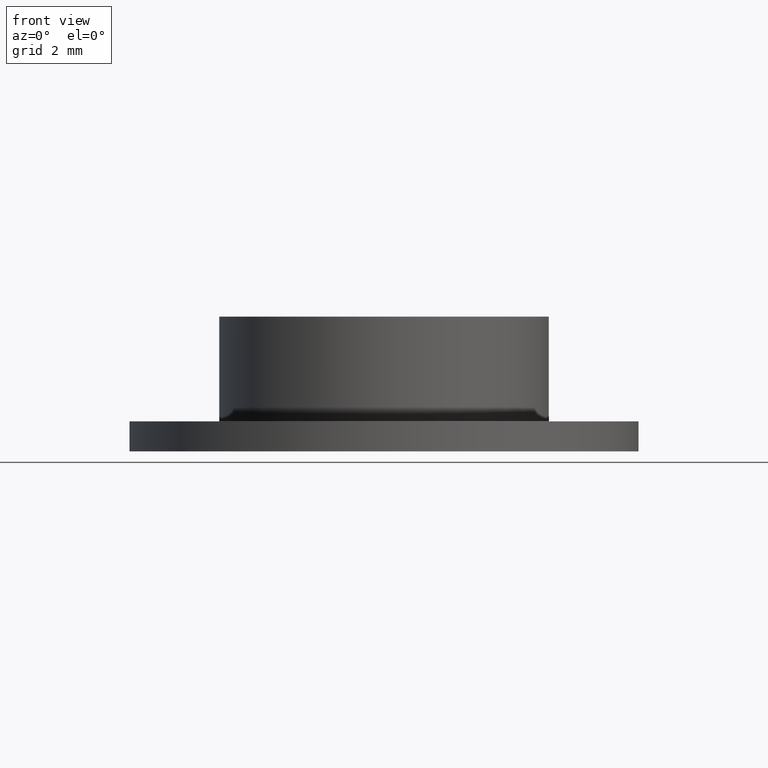
[diagram: clean part render]
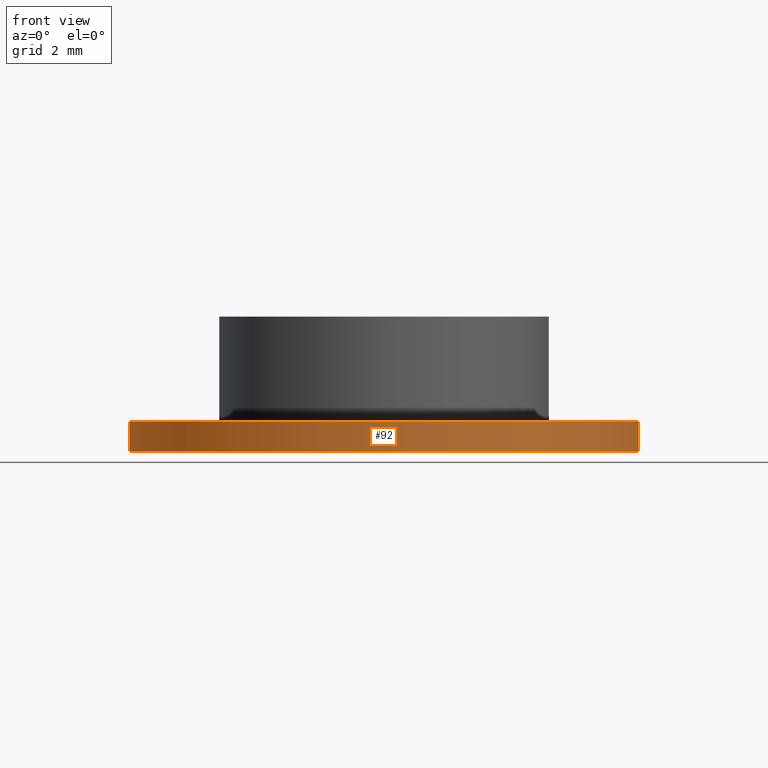
[diagram: same view with one face highlighted and labeled with its STEP entity id]
A machine part, front view. The second image highlights one B-rep face of the part: STEP entity #92.
In plain terms, the highlighted cylindrical surface (bore or boss wall) has radius 8.5 mm, axis along (0, 0, 1).
Its self-contained STEP definition (entity closure, byte-faithful):
#24=FACE_OUTER_BOUND('',#31,.T.);
#31=EDGE_LOOP('',(#78,#79,#80,#81));
#38=LINE('',#179,#41);
#41=VECTOR('',#152,8.5);
#47=CIRCLE('',#124,8.5);
#48=CIRCLE('',#125,8.5);
#54=VERTEX_POINT('',#176);
#55=VERTEX_POINT('',#178);
#63=EDGE_CURVE('',#54,#54,#47,.T.);
#64=EDGE_CURVE('',#54,#55,#38,.T.);
#65=EDGE_CURVE('',#55,#55,#48,.T.);
#78=ORIENTED_EDGE('',*,*,#63,.F.);
#79=ORIENTED_EDGE('',*,*,#64,.T.);
#80=ORIENTED_EDGE('',*,*,#65,.F.);
#81=ORIENTED_EDGE('',*,*,#64,.F.);
#88=CYLINDRICAL_SURFACE('',#123,8.5);
#92=ADVANCED_FACE('',(#24),#88,.T.);
#123=AXIS2_PLACEMENT_3D('',#175,#148,#149);
#124=AXIS2_PLACEMENT_3D('',#177,#150,#151);
#125=AXIS2_PLACEMENT_3D('',#180,#153,#154);
#148=DIRECTION('center_axis',(0.,0.,1.));
#149=DIRECTION('ref_axis',(-1.,0.,0.));
#150=DIRECTION('center_axis',(0.,0.,1.));
#151=DIRECTION('ref_axis',(-1.,0.,0.));
#152=DIRECTION('',(0.,0.,-1.));
#153=DIRECTION('center_axis',(0.,0.,-1.));
#154=DIRECTION('ref_axis',(-1.,0.,0.));
#175=CARTESIAN_POINT('Origin',(0.,0.,0.));
#176=CARTESIAN_POINT('',(8.5,1.04094977927525E-15,1.));
#177=CARTESIAN_POINT('Origin',(0.,0.,1.));
#178=CARTESIAN_POINT('',(8.5,1.04094977927525E-15,0.));
#179=CARTESIAN_POINT('',(8.5,1.04094977927525E-15,0.));
#180=CARTESIAN_POINT('Origin',(0.,0.,0.));